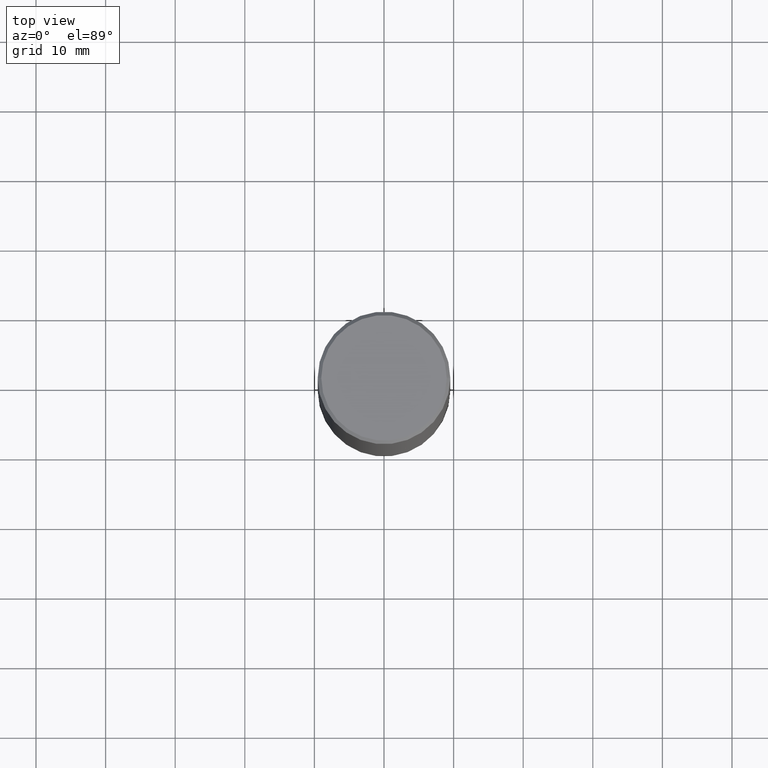
[diagram: clean part render]
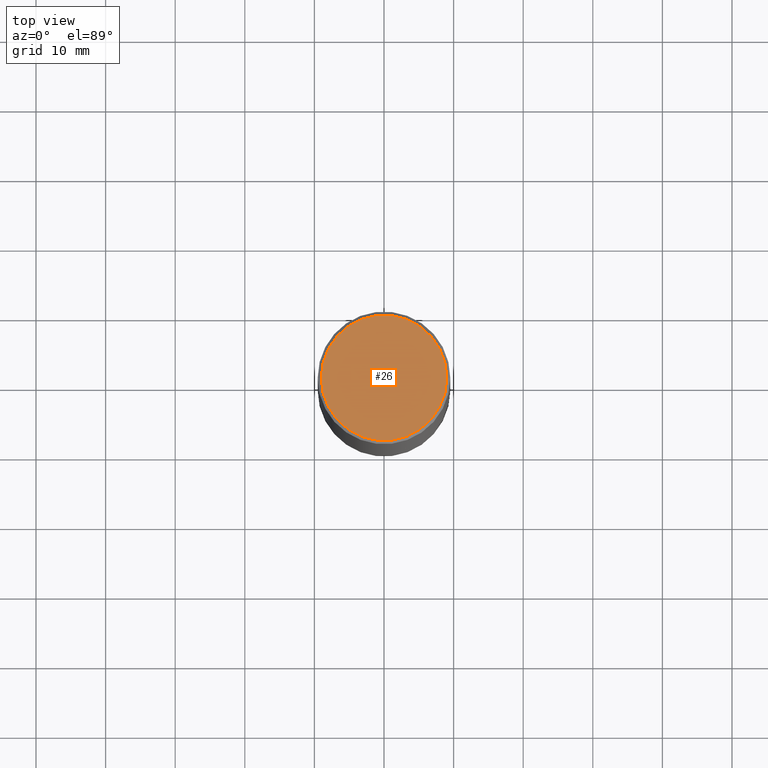
[diagram: same view with one face highlighted and labeled with its STEP entity id]
A machine part, top view. The second image highlights one B-rep face of the part: STEP entity #26.
In plain terms, the highlighted planar face has unit normal (0, -0, -1).
Its self-contained STEP definition (entity closure, byte-faithful):
#6 = ORIENTED_EDGE ( 'NONE', *, *, #203, .T. ) ;
#14 = CARTESIAN_POINT ( 'NONE',  ( 0.3549999999999996492, -2.538996582575038287E-15, 4.268512490117958041E-18 ) ) ;
#20 = AXIS2_PLACEMENT_3D ( 'NONE', #259, #70, #155 ) ;
#26 = ADVANCED_FACE ( 'NONE', ( #207 ), #279, .F. ) ;
#34 = DIRECTION ( 'NONE',  ( -2.445468806185136597E-29, 3.491481338843145583E-15, 1.000000000000000000 ) ) ;
#46 = ORIENTED_EDGE ( 'NONE', *, *, #106, .T. ) ;
#55 = AXIS2_PLACEMENT_3D ( 'NONE', #256, #34, #351 ) ;
#70 = DIRECTION ( 'NONE',  ( -2.445468806185136597E-29, 3.491481338843145583E-15, 1.000000000000000000 ) ) ;
#83 = CARTESIAN_POINT ( 'NONE',  ( 2.478951750578621842E-15, 0.3549999999999996492, -1.237341619044265047E-15 ) ) ;
#84 = AXIS2_PLACEMENT_3D ( 'NONE', #83, #147, #117 ) ;
#106 = EDGE_CURVE ( 'NONE', #338, #129, #352, .T. ) ;
#117 = DIRECTION ( 'NONE',  ( -1.000000000000000000, 6.982962677686265922E-15, -4.876176775795935793E-29 ) ) ;
#129 = VERTEX_POINT ( 'NONE', #14 ) ;
#147 = DIRECTION ( 'NONE',  ( 2.438088387897960049E-29, -3.491481338843145188E-15, -1.000000000000000000 ) ) ;
#155 = DIRECTION ( 'NONE',  ( 1.000000000000000000, -6.982962677686265922E-15, 4.876231632511992667E-29 ) ) ;
#203 = EDGE_CURVE ( 'NONE', #129, #338, #222, .T. ) ;
#207 = FACE_OUTER_BOUND ( 'NONE', #354, .T. ) ;
#222 = CIRCLE ( 'NONE', #55, 0.3549999999999996492 ) ;
#256 = CARTESIAN_POINT ( 'NONE',  ( -1.043851414335219820E-46, 1.490343170380447200E-32, 4.268512490100411279E-18 ) ) ;
#259 = CARTESIAN_POINT ( 'NONE',  ( -1.043851414335219820E-46, 1.490343170380447200E-32, 4.268512490100411279E-18 ) ) ;
#279 = PLANE ( 'NONE',  #84 ) ;
#301 = CARTESIAN_POINT ( 'NONE',  ( -0.3549999999999996492, 2.513866563967053097E-15, 4.268512490082953109E-18 ) ) ;
#338 = VERTEX_POINT ( 'NONE', #301 ) ;
#351 = DIRECTION ( 'NONE',  ( 1.000000000000000000, -6.982962677686265922E-15, 4.876231632511992667E-29 ) ) ;
#352 = CIRCLE ( 'NONE', #20, 0.3549999999999996492 ) ;
#354 = EDGE_LOOP ( 'NONE', ( #46, #6 ) ) ;